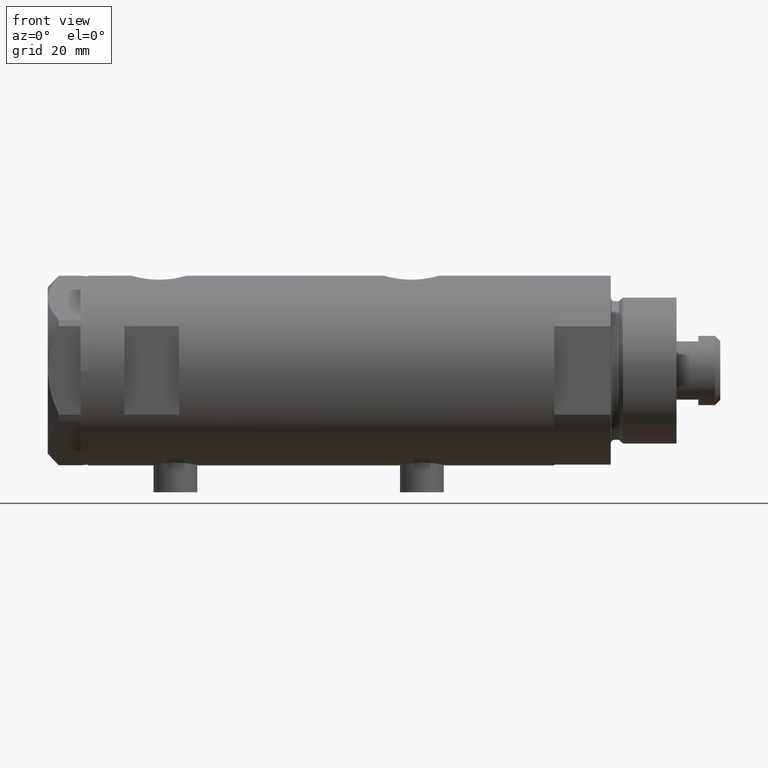
[diagram: clean part render]
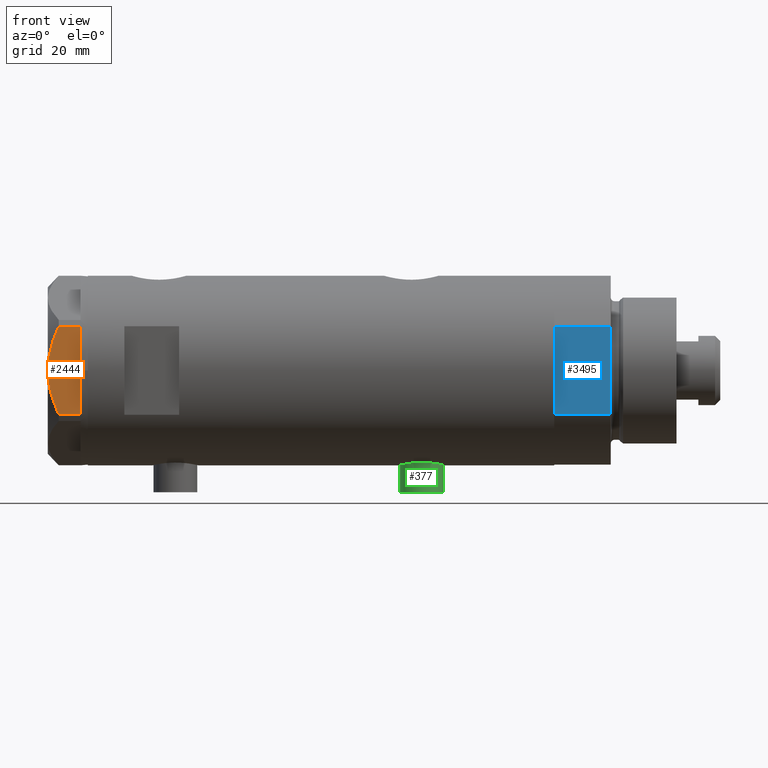
[diagram: same view with three faces highlighted in distinct colors, each labeled with its STEP entity id]
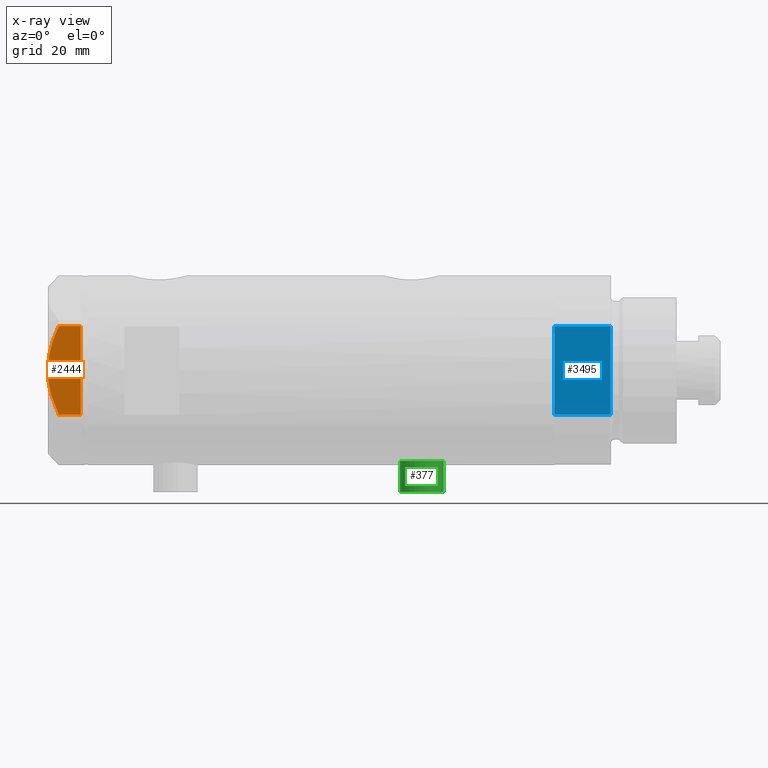
[diagram: x-ray of the same camera — body ghosted, the three highlighted faces saturated]
A machine part, front view with three faces highlighted in distinct colors.
The next image is the same camera in x-ray (body ghosted, the three faces saturated) — at least one of them is partly hidden behind the body in this view.
Their STEP definitions:

[orange] entity #2444 — the highlighted planar face has unit normal (-0, 1, -0).
#26 = EDGE_CURVE ( 'NONE', #4633, #3078, #2387, .T. ) ;
#59 = EDGE_LOOP ( 'NONE', ( #679, #3903, #4325, #2649, #721, #2991, #358 ) ) ;
#189 = EDGE_CURVE ( 'NONE', #4633, #1314, #3238, .T. ) ;
#358 = ORIENTED_EDGE ( 'NONE', *, *, #4548, .F. ) ;
#360 = LINE ( 'NONE', #2251, #3724 ) ;
#492 = DIRECTION ( 'NONE',  ( 0.000000000000000000, 0.000000000000000000, -1.000000000000000000 ) ) ;
#590 = VERTEX_POINT ( 'NONE', #3182 ) ;
#604 = EDGE_CURVE ( 'NONE', #3078, #4639, #2869, .T. ) ;
#679 = ORIENTED_EDGE ( 'NONE', *, *, #189, .F. ) ;
#721 = ORIENTED_EDGE ( 'NONE', *, *, #1393, .T. ) ;
#884 = CARTESIAN_POINT ( 'NONE',  ( -22.99999999999991829, -9.734726261263297431, 7.028924700095662281 ) ) ;
#935 = CARTESIAN_POINT ( 'NONE',  ( -22.99999999999999645, 13.27905619136132032, 0.000000000000000000 ) ) ;
#1093 = CARTESIAN_POINT ( 'NONE',  ( -22.99999999999997158, 6.734330413511419700, 8.039389741252668031 ) ) ;
#1271 = VECTOR ( 'NONE', #1891, 1000.000000000000000 ) ;
#1314 = VERTEX_POINT ( 'NONE', #4165 ) ;
#1393 = EDGE_CURVE ( 'NONE', #590, #1510, #1718, .T. ) ;
#1448 = CARTESIAN_POINT ( 'NONE',  ( -22.99999999999995737, -0.5295934231897764244, 9.000000000000092371 ) ) ;
#1510 = VERTEX_POINT ( 'NONE', #3154 ) ;
#1718 = LINE ( 'NONE', #935, #2394 ) ;
#1865 = CARTESIAN_POINT ( 'NONE',  ( -22.99999999999993250, -4.203926054641964782, 8.641681223122507305 ) ) ;
#1886 = CARTESIAN_POINT ( 'NONE',  ( -22.99999999999991829, -8.252113629125268801, 7.581642062680223226 ) ) ;
#1891 = DIRECTION ( 'NONE',  ( 0.000000000000000000, 0.000000000000000000, 1.000000000000000000 ) ) ;
#1985 = CARTESIAN_POINT ( 'NONE',  ( -23.00000000000004619, -8.112498833180673323E-14, 9.000000000000000000 ) ) ;
#2193 = CARTESIAN_POINT ( 'NONE',  ( -22.99999999999990763, -12.15905619136147564, 5.983800287807627072 ) ) ;
#2222 = DIRECTION ( 'NONE',  ( 3.527173405730720141E-15, -1.000000000000000000, 0.000000000000000000 ) ) ;
#2251 = CARTESIAN_POINT ( 'NONE',  ( -22.99999999999999645, 13.27905619136132032, 0.000000000000000000 ) ) ;
#2277 = CARTESIAN_POINT ( 'NONE',  ( -22.99999999999990763, -12.15905619136147386, 9.000000000000000000 ) ) ;
#2350 = FACE_OUTER_BOUND ( 'NONE', #59, .T. ) ;
#2358 = CARTESIAN_POINT ( 'NONE',  ( -22.99999999999999289, 12.15905619136133176, 5.983800287807616414 ) ) ;
#2387 = LINE ( 'NONE', #3873, #3694 ) ;
#2394 = VECTOR ( 'NONE', #2847, 1000.000000000000000 ) ;
#2444 = ADVANCED_FACE ( 'NONE', ( #2350 ), #3734, .F. ) ;
#2467 = CARTESIAN_POINT ( 'NONE',  ( -22.99999999999999645, 13.27905619136132032, 0.000000000000000000 ) ) ;
#2612 = CARTESIAN_POINT ( 'NONE',  ( -22.99999999999992895, -5.228918809624124364, 8.433337033849854336 ) ) ;
#2649 = ORIENTED_EDGE ( 'NONE', *, *, #4484, .T. ) ;
#2681 = CARTESIAN_POINT ( 'NONE',  ( -22.99999999999990763, -12.15905619136147564, 5.983800287807627072 ) ) ;
#2847 = DIRECTION ( 'NONE',  ( 3.527173405730720141E-15, -1.000000000000000000, 0.000000000000000000 ) ) ;
#2869 = LINE ( 'NONE', #2467, #3325 ) ;
#2984 = CARTESIAN_POINT ( 'NONE',  ( -22.99999999999995026, -1.063773509315737442, 8.981438083606830602 ) ) ;
#2991 = ORIENTED_EDGE ( 'NONE', *, *, #4197, .T. ) ;
#2995 = CARTESIAN_POINT ( 'NONE',  ( -22.99999999999996803, 4.194757081058972936, 8.703000351525203016 ) ) ;
#3078 = VERTEX_POINT ( 'NONE', #3702 ) ;
#3093 = CARTESIAN_POINT ( 'NONE',  ( -22.99999999999998224, 8.246028007352361300, 7.571131808646907935 ) ) ;
#3154 = CARTESIAN_POINT ( 'NONE',  ( -22.99999999999990763, -12.15905619136147386, 0.000000000000000000 ) ) ;
#3182 = CARTESIAN_POINT ( 'NONE',  ( -22.99999999999990763, -12.12435565298232021, 0.000000000000000000 ) ) ;
#3185 = VERTEX_POINT ( 'NONE', #2193 ) ;
#3238 = B_SPLINE_CURVE_WITH_KNOTS ( 'NONE', 3,
 ( #2358, #4149, #3839, #4870, #3093, #3408, #1093, #2995, #3382, #1985 ),
 .UNSPECIFIED., .F., .F.,
 ( 4, 2, 2, 2, 4 ),
 ( 0.03516523594057416324, 0.03831677594541234300, 0.03989254594783143981, 0.04146831595025052969, 0.04777139595992690307 ),
 .UNSPECIFIED. ) ;
#3323 = CARTESIAN_POINT ( 'NONE',  ( -23.00000000000004619, -8.112498833180673323E-14, 9.000000000000000000 ) ) ;
#3325 = VECTOR ( 'NONE', #3907, 1000.000000000000000 ) ;
#3382 = CARTESIAN_POINT ( 'NONE',  ( -22.99999999999995381, 2.122900714018063795, 9.000000000000092371 ) ) ;
#3408 = CARTESIAN_POINT ( 'NONE',  ( -22.99999999999996803, 7.239756182922199024, 7.892186063422847120 ) ) ;
#3427 = DIRECTION ( 'NONE',  ( 1.000000000000000000, 3.527173405730720141E-15, -0.000000000000000000 ) ) ;
#3466 = CARTESIAN_POINT ( 'NONE',  ( -22.99999999999991118, -10.22738952213794761, 6.832470313674783746 ) ) ;
#3694 = VECTOR ( 'NONE', #492, 1000.000000000000000 ) ;
#3702 = CARTESIAN_POINT ( 'NONE',  ( -22.99999999999999289, 12.15905619136133176, 0.000000000000000000 ) ) ;
#3724 = VECTOR ( 'NONE', #2222, 1000.000000000000000 ) ;
#3734 = PLANE ( 'NONE',  #4034 ) ;
#3833 = CARTESIAN_POINT ( 'NONE',  ( -22.99999999999999645, 13.27905619136132032, 9.000000000000000000 ) ) ;
#3839 = CARTESIAN_POINT ( 'NONE',  ( -22.99999999999998579, 10.23890159976122050, 6.840812428290914404 ) ) ;
#3873 = CARTESIAN_POINT ( 'NONE',  ( -22.99999999999999289, 12.15905619136133176, 9.000000000000000000 ) ) ;
#3903 = ORIENTED_EDGE ( 'NONE', *, *, #26, .T. ) ;
#3907 = DIRECTION ( 'NONE',  ( 3.527173405730720141E-15, -1.000000000000000000, 0.000000000000000000 ) ) ;
#4034 = AXIS2_PLACEMENT_3D ( 'NONE', #3833, #3427, #4478 ) ;
#4112 = CARTESIAN_POINT ( 'NONE',  ( -22.99999999999992184, -7.253003311474388148, 7.903276810347638737 ) ) ;
#4149 = CARTESIAN_POINT ( 'NONE',  ( -22.99999999999998934, 11.20825071633916359, 6.428173306378450746 ) ) ;
#4165 = CARTESIAN_POINT ( 'NONE',  ( -23.00000000000004619, -8.112498833180673323E-14, 9.000000000000000000 ) ) ;
#4197 = EDGE_CURVE ( 'NONE', #1510, #3185, #4844, .T. ) ;
#4216 = CARTESIAN_POINT ( 'NONE',  ( -22.99999999999991118, -11.20155944044816287, 6.421102682632757741 ) ) ;
#4257 = B_SPLINE_CURVE_WITH_KNOTS ( 'NONE', 3,
 ( #3323, #1448, #2984, #4477, #4814, #1865, #2612, #4112, #1886, #884, #3466, #4216, #4566, #2681 ),
 .UNSPECIFIED., .F., .F.,
 ( 4, 2, 2, 2, 2, 2, 4 ),
 ( 0.04777139595992690307, 0.04934380568070229761, 0.05091621540147769215, 0.05406103484302848122, 0.05720585428457927030, 0.05877826400535466483, 0.06035067372613005937 ),
 .UNSPECIFIED. ) ;
#4282 = CARTESIAN_POINT ( 'NONE',  ( -22.99999999999999289, 12.12435565298215856, 0.000000000000000000 ) ) ;
#4325 = ORIENTED_EDGE ( 'NONE', *, *, #604, .T. ) ;
#4477 = CARTESIAN_POINT ( 'NONE',  ( -22.99999999999993960, -2.119709279061923191, 8.908535212173198659 ) ) ;
#4478 = DIRECTION ( 'NONE',  ( -3.527173405730720141E-15, 1.000000000000000000, 0.000000000000000000 ) ) ;
#4484 = EDGE_CURVE ( 'NONE', #4639, #590, #360, .T. ) ;
#4545 = CARTESIAN_POINT ( 'NONE',  ( -22.99999999999999289, 12.15905619136133176, 5.983800287807616414 ) ) ;
#4548 = EDGE_CURVE ( 'NONE', #1314, #3185, #4257, .T. ) ;
#4566 = CARTESIAN_POINT ( 'NONE',  ( -22.99999999999990763, -11.68282849742335827, 6.206372352695425754 ) ) ;
#4633 = VERTEX_POINT ( 'NONE', #4545 ) ;
#4639 = VERTEX_POINT ( 'NONE', #4282 ) ;
#4814 = CARTESIAN_POINT ( 'NONE',  ( -22.99999999999993960, -2.643615312305158671, 8.854304560636265364 ) ) ;
#4844 = LINE ( 'NONE', #2277, #1271 ) ;
#4870 = CARTESIAN_POINT ( 'NONE',  ( -22.99999999999997513, 8.748091966971378142, 7.396818978284571244 ) ) ;

[blue] entity #3495 — the highlighted planar face has unit normal (-0, 1, 0).
#126 = CARTESIAN_POINT ( 'NONE',  ( -12.12435565298215145, -22.99999999999999645, 0.000000000000000000 ) ) ;
#155 = EDGE_LOOP ( 'NONE', ( #1589, #2516, #824, #1114 ) ) ;
#216 = DIRECTION ( 'NONE',  ( -0.000000000000000000, -0.000000000000000000, 1.000000000000000000 ) ) ;
#299 = CARTESIAN_POINT ( 'NONE',  ( -12.12435565298215145, -22.99999999999999645, 0.000000000000000000 ) ) ;
#364 = CARTESIAN_POINT ( 'NONE',  ( -12.12435565298215145, -22.99999999999999645, 0.000000000000000000 ) ) ;
#371 = DIRECTION ( 'NONE',  ( -1.000000000000000000, -0.000000000000000000, -0.000000000000000000 ) ) ;
#467 = VERTEX_POINT ( 'NONE', #4729 ) ;
#497 = LINE ( 'NONE', #621, #1431 ) ;
#577 = VERTEX_POINT ( 'NONE', #1324 ) ;
#621 = CARTESIAN_POINT ( 'NONE',  ( 12.12435565298215323, -22.99999999999999645, 0.000000000000000000 ) ) ;
#637 = CARTESIAN_POINT ( 'NONE',  ( -12.12435565298215145, -22.99999999999999645, 15.50000000000000000 ) ) ;
#692 = DIRECTION ( 'NONE',  ( -0.000000000000000000, -0.000000000000000000, 1.000000000000000000 ) ) ;
#789 = EDGE_CURVE ( 'NONE', #467, #1057, #4056, .T. ) ;
#824 = ORIENTED_EDGE ( 'NONE', *, *, #1779, .F. ) ;
#842 = LINE ( 'NONE', #126, #933 ) ;
#933 = VECTOR ( 'NONE', #4629, 1000.000000000000000 ) ;
#945 = VERTEX_POINT ( 'NONE', #3097 ) ;
#1057 = VERTEX_POINT ( 'NONE', #3808 ) ;
#1114 = ORIENTED_EDGE ( 'NONE', *, *, #4726, .T. ) ;
#1324 = CARTESIAN_POINT ( 'NONE',  ( -12.12435565298215501, -22.99999999999999645, 0.000000000000000000 ) ) ;
#1431 = VECTOR ( 'NONE', #216, 1000.000000000000000 ) ;
#1499 = VECTOR ( 'NONE', #692, 1000.000000000000000 ) ;
#1589 = ORIENTED_EDGE ( 'NONE', *, *, #789, .T. ) ;
#1775 = PLANE ( 'NONE',  #4361 ) ;
#1779 = EDGE_CURVE ( 'NONE', #945, #577, #842, .T. ) ;
#2274 = DIRECTION ( 'NONE',  ( 0.000000000000000000, -0.000000000000000000, 1.000000000000000000 ) ) ;
#2516 = ORIENTED_EDGE ( 'NONE', *, *, #4227, .F. ) ;
#3097 = CARTESIAN_POINT ( 'NONE',  ( 12.12435565298215323, -22.99999999999999645, 0.000000000000000000 ) ) ;
#3495 = ADVANCED_FACE ( 'NONE', ( #3793 ), #1775, .F. ) ;
#3709 = DIRECTION ( 'NONE',  ( -0.000000000000000000, 1.000000000000000000, 0.000000000000000000 ) ) ;
#3793 = FACE_OUTER_BOUND ( 'NONE', #155, .T. ) ;
#3808 = CARTESIAN_POINT ( 'NONE',  ( -12.12435565298215323, -22.99999999999999645, 15.50000000000000000 ) ) ;
#4056 = LINE ( 'NONE', #637, #4194 ) ;
#4194 = VECTOR ( 'NONE', #371, 1000.000000000000000 ) ;
#4227 = EDGE_CURVE ( 'NONE', #577, #1057, #4465, .T. ) ;
#4361 = AXIS2_PLACEMENT_3D ( 'NONE', #299, #3709, #2274 ) ;
#4465 = LINE ( 'NONE', #364, #1499 ) ;
#4629 = DIRECTION ( 'NONE',  ( -1.000000000000000000, -0.000000000000000000, -0.000000000000000000 ) ) ;
#4726 = EDGE_CURVE ( 'NONE', #945, #467, #497, .T. ) ;
#4729 = CARTESIAN_POINT ( 'NONE',  ( 12.12435565298215323, -22.99999999999999645, 15.50000000000000000 ) ) ;

[green] entity #377 — the highlighted cylindrical surface (edge-blend (fillet) strip) has radius 6 mm, axis along (0, 0, 1).
#7 = ORIENTED_EDGE ( 'NONE', *, *, #4229, .F. ) ;
#208 = DIRECTION ( 'NONE',  ( 1.000000000000000000, -0.000000000000000000, -0.000000000000000000 ) ) ;
#377 = ADVANCED_FACE ( 'NONE', ( #1667 ), #3190, .T. ) ;
#436 = VERTEX_POINT ( 'NONE', #971 ) ;
#493 = VECTOR ( 'NONE', #1869, 1000.000000000000000 ) ;
#619 = DIRECTION ( 'NONE',  ( 0.000000000000000000, 0.000000000000000000, 1.000000000000000000 ) ) ;
#971 = CARTESIAN_POINT ( 'NONE',  ( -33.39999999999999858, 7.347880794884123680E-16, -21.65000000000000213 ) ) ;
#1037 = EDGE_CURVE ( 'NONE', #2257, #436, #4657, .T. ) ;
#1227 = CARTESIAN_POINT ( 'NONE',  ( -33.39999999999999858, 0.000000000000000000, -33.65000000000001279 ) ) ;
#1261 = CIRCLE ( 'NONE', #4041, 6.000000000000001776 ) ;
#1290 = DIRECTION ( 'NONE',  ( 0.000000000000000000, 0.000000000000000000, -1.000000000000000000 ) ) ;
#1334 = ORIENTED_EDGE ( 'NONE', *, *, #4724, .T. ) ;
#1346 = DIRECTION ( 'NONE',  ( -1.000000000000000000, 0.000000000000000000, 0.000000000000000000 ) ) ;
#1407 = AXIS2_PLACEMENT_3D ( 'NONE', #4683, #208, #1290 ) ;
#1667 = FACE_OUTER_BOUND ( 'NONE', #2811, .T. ) ;
#1675 = EDGE_CURVE ( 'NONE', #4211, #3836, #1261, .T. ) ;
#1869 = DIRECTION ( 'NONE',  ( 1.000000000000000000, -0.000000000000000000, -0.000000000000000000 ) ) ;
#1889 = DIRECTION ( 'NONE',  ( -1.000000000000000000, 0.000000000000000000, 0.000000000000000000 ) ) ;
#1922 = CARTESIAN_POINT ( 'NONE',  ( -33.39999999999999858, 0.000000000000000000, -27.65000000000000924 ) ) ;
#2080 = AXIS2_PLACEMENT_3D ( 'NONE', #1922, #1889, #2716 ) ;
#2257 = VERTEX_POINT ( 'NONE', #2420 ) ;
#2298 = CARTESIAN_POINT ( 'NONE',  ( -33.39999999999999858, 7.347880794884121708E-16, -21.65000000000000568 ) ) ;
#2420 = CARTESIAN_POINT ( 'NONE',  ( -33.39999999999999858, 0.000000000000000000, -33.65000000000001279 ) ) ;
#2561 = VECTOR ( 'NONE', #2760, 1000.000000000000000 ) ;
#2716 = DIRECTION ( 'NONE',  ( 0.000000000000000000, 0.000000000000000000, 1.000000000000000000 ) ) ;
#2760 = DIRECTION ( 'NONE',  ( 1.000000000000000000, -0.000000000000000000, -0.000000000000000000 ) ) ;
#2811 = EDGE_LOOP ( 'NONE', ( #7, #4343, #1334, #2902 ) ) ;
#2902 = ORIENTED_EDGE ( 'NONE', *, *, #1675, .T. ) ;
#3190 = CYLINDRICAL_SURFACE ( 'NONE', #1407, 6.000000000000005329 ) ;
#3397 = LINE ( 'NONE', #2298, #493 ) ;
#3836 = VERTEX_POINT ( 'NONE', #3843 ) ;
#3843 = CARTESIAN_POINT ( 'NONE',  ( -24.80000000000000426, 7.347880794884123680E-16, -21.65000000000000213 ) ) ;
#3852 = LINE ( 'NONE', #1227, #2561 ) ;
#4041 = AXIS2_PLACEMENT_3D ( 'NONE', #4386, #1346, #619 ) ;
#4162 = CARTESIAN_POINT ( 'NONE',  ( -24.80000000000000426, 0.000000000000000000, -33.65000000000001279 ) ) ;
#4211 = VERTEX_POINT ( 'NONE', #4162 ) ;
#4229 = EDGE_CURVE ( 'NONE', #436, #3836, #3397, .T. ) ;
#4343 = ORIENTED_EDGE ( 'NONE', *, *, #1037, .F. ) ;
#4386 = CARTESIAN_POINT ( 'NONE',  ( -24.80000000000000426, 0.000000000000000000, -27.65000000000000924 ) ) ;
#4657 = CIRCLE ( 'NONE', #2080, 6.000000000000001776 ) ;
#4683 = CARTESIAN_POINT ( 'NONE',  ( -33.39999999999999858, 0.000000000000000000, -27.65000000000000924 ) ) ;
#4724 = EDGE_CURVE ( 'NONE', #2257, #4211, #3852, .T. ) ;